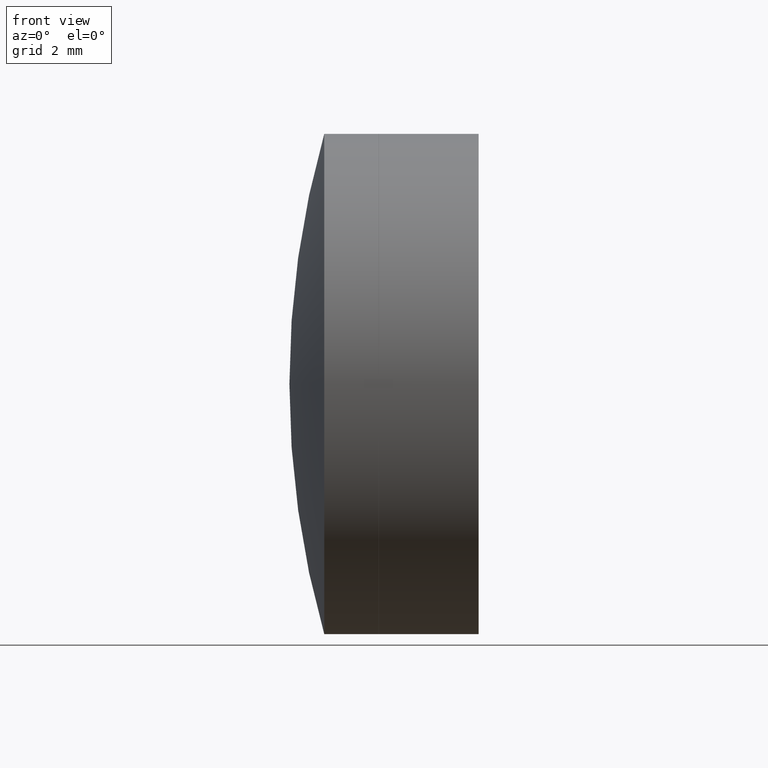
[diagram: clean part render]
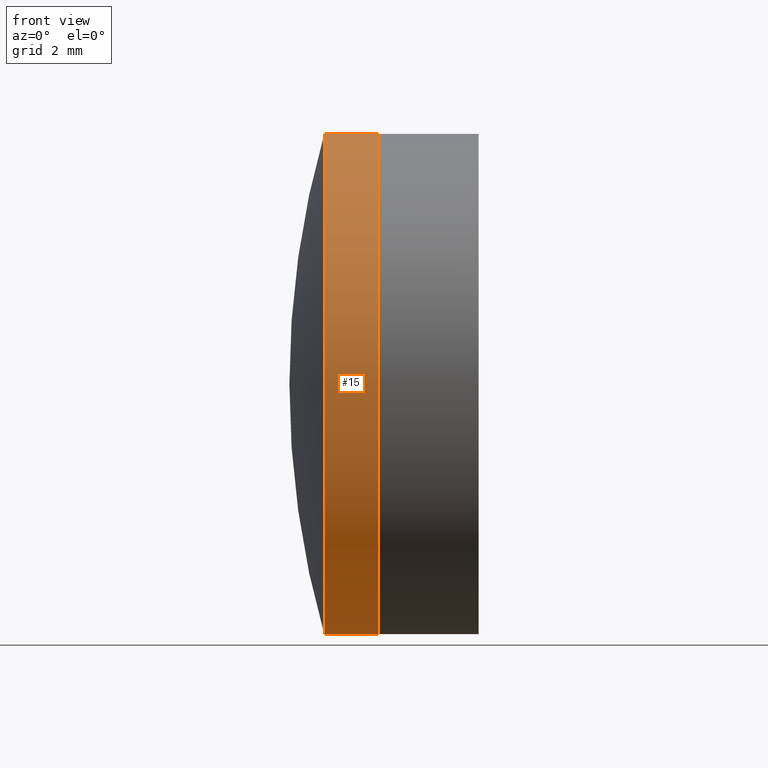
[diagram: same view with one face highlighted and labeled with its STEP entity id]
A machine part, front view. The second image highlights one B-rep face of the part: STEP entity #15.
In plain terms, the highlighted cylindrical surface (partial cylindrical patch) has radius 6.35 mm, axis along (-1, -0, -0).
Its self-contained STEP definition (entity closure, byte-faithful):
#5 = CARTESIAN_POINT ( 'NONE',  ( 37.20671594264952400, 0.0000000000000000000, 0.0000000000000000000 ) ) ;
#10 = CARTESIAN_POINT ( 'NONE',  ( -0.8160621761658039000, 7.776507174585693100E-016, -6.350000000000000500 ) ) ;
#15 = ADVANCED_FACE ( 'NONE', ( #70 ), #144, .T. ) ;
#29 = DIRECTION ( 'NONE',  ( 0.0000000000000000000, 0.0000000000000000000, 1.000000000000000000 ) ) ;
#34 = AXIS2_PLACEMENT_3D ( 'NONE', #244, #229, #41 ) ;
#41 = DIRECTION ( 'NONE',  ( 0.0000000000000000000, 0.0000000000000000000, 1.000000000000000000 ) ) ;
#54 = LINE ( 'NONE', #10, #65 ) ;
#62 = CIRCLE ( 'NONE', #73, 6.350000000000000500 ) ;
#65 = VECTOR ( 'NONE', #333, 1000.000000000000000 ) ;
#70 = FACE_OUTER_BOUND ( 'NONE', #168, .T. ) ;
#72 = EDGE_CURVE ( 'NONE', #101, #117, #54, .T. ) ;
#73 = AXIS2_PLACEMENT_3D ( 'NONE', #5, #326, #29 ) ;
#93 = VERTEX_POINT ( 'NONE', #273 ) ;
#96 = CARTESIAN_POINT ( 'NONE',  ( 38.58865659512439800, 7.776507174585693100E-016, -6.350000000000000500 ) ) ;
#101 = VERTEX_POINT ( 'NONE', #96 ) ;
#114 = DIRECTION ( 'NONE',  ( -1.000000000000000000, -0.0000000000000000000, -0.0000000000000000000 ) ) ;
#115 = DIRECTION ( 'NONE',  ( 0.0000000000000000000, 0.0000000000000000000, 1.000000000000000000 ) ) ;
#117 = VERTEX_POINT ( 'NONE', #334 ) ;
#137 = CARTESIAN_POINT ( 'NONE',  ( -0.8160621761658039000, 0.0000000000000000000, 0.0000000000000000000 ) ) ;
#139 = CARTESIAN_POINT ( 'NONE',  ( 37.20671594264951700, -7.776507174585689200E-016, 6.349999999999997900 ) ) ;
#144 = CYLINDRICAL_SURFACE ( 'NONE', #159, 6.350000000000000500 ) ;
#146 = EDGE_CURVE ( 'NONE', #93, #206, #196, .T. ) ;
#159 = AXIS2_PLACEMENT_3D ( 'NONE', #137, #185, #115 ) ;
#168 = EDGE_LOOP ( 'NONE', ( #302, #261, #175, #290 ) ) ;
#175 = ORIENTED_EDGE ( 'NONE', *, *, #146, .T. ) ;
#185 = DIRECTION ( 'NONE',  ( -1.000000000000000000, -0.0000000000000000000, -0.0000000000000000000 ) ) ;
#188 = CIRCLE ( 'NONE', #34, 6.350000000000000500 ) ;
#196 = LINE ( 'NONE', #297, #249 ) ;
#206 = VERTEX_POINT ( 'NONE', #139 ) ;
#229 = DIRECTION ( 'NONE',  ( -1.000000000000000000, -0.0000000000000000000, -0.0000000000000000000 ) ) ;
#244 = CARTESIAN_POINT ( 'NONE',  ( 38.58865659512439800, 0.0000000000000000000, 0.0000000000000000000 ) ) ;
#249 = VECTOR ( 'NONE', #114, 1000.000000000000000 ) ;
#261 = ORIENTED_EDGE ( 'NONE', *, *, #312, .T. ) ;
#273 = CARTESIAN_POINT ( 'NONE',  ( 38.58865659512439800, 0.0000000000000000000, 6.350000000000000500 ) ) ;
#290 = ORIENTED_EDGE ( 'NONE', *, *, #327, .F. ) ;
#297 = CARTESIAN_POINT ( 'NONE',  ( -0.8160621761658039000, 0.0000000000000000000, 6.350000000000000500 ) ) ;
#302 = ORIENTED_EDGE ( 'NONE', *, *, #72, .F. ) ;
#312 = EDGE_CURVE ( 'NONE', #101, #93, #188, .T. ) ;
#326 = DIRECTION ( 'NONE',  ( -1.000000000000000000, -0.0000000000000000000, -0.0000000000000000000 ) ) ;
#327 = EDGE_CURVE ( 'NONE', #117, #206, #62, .T. ) ;
#333 = DIRECTION ( 'NONE',  ( -1.000000000000000000, -0.0000000000000000000, -0.0000000000000000000 ) ) ;
#334 = CARTESIAN_POINT ( 'NONE',  ( 37.20671594264951700, 0.0000000000000000000, -6.349999999999997000 ) ) ;